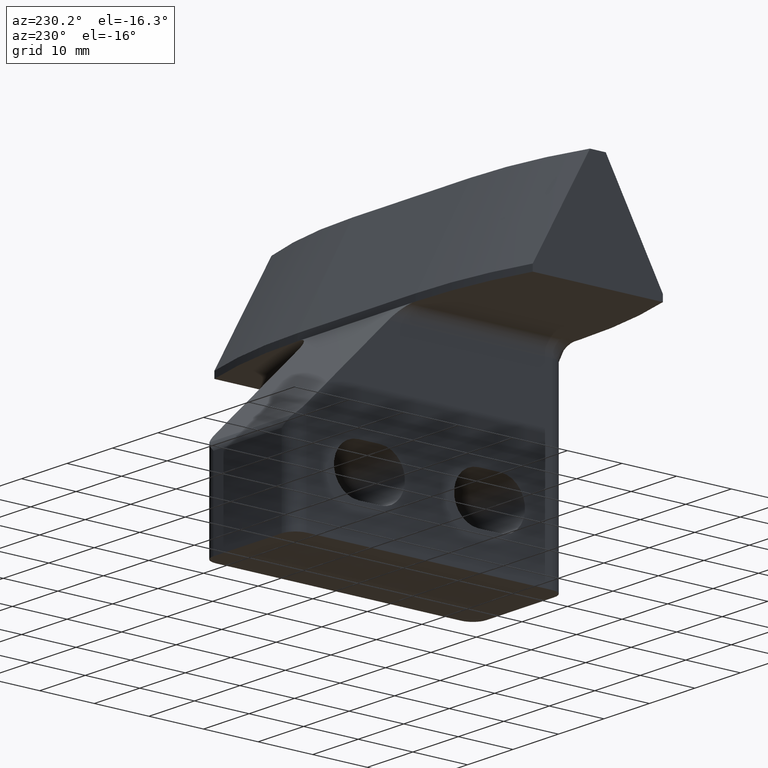
[diagram: clean part render]
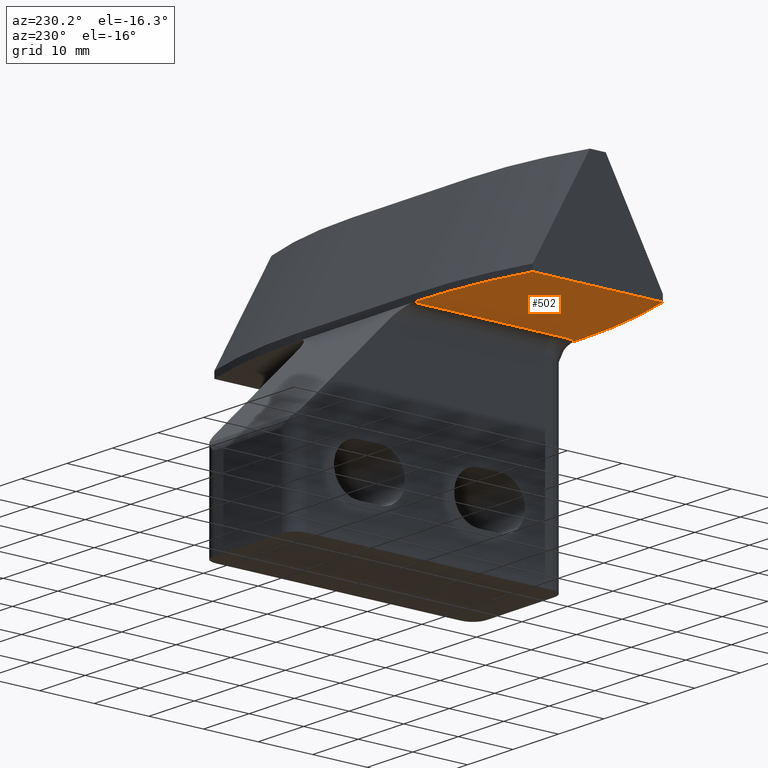
[diagram: same view with one face highlighted and labeled with its STEP entity id]
A machine part, auxiliary view. The second image highlights one B-rep face of the part: STEP entity #502.
In plain terms, the highlighted planar face has unit normal (-0, 0, -1).
Its self-contained STEP definition (entity closure, byte-faithful):
#11 = DIRECTION ( 'NONE',  ( 1.000000000000000000, -0.0000000000000000000, -2.449212699372949900E-016 ) ) ;
#56 = VECTOR ( 'NONE', #75, 1000.000000000000000 ) ;
#67 = CARTESIAN_POINT ( 'NONE',  ( 234.1349525314609800, -199.0043693264350100, 74.60903880632299900 ) ) ;
#75 = DIRECTION ( 'NONE',  ( -5.745622712387520600E-015, -1.000000000000000000, -1.501220156255855100E-042 ) ) ;
#88 = CIRCLE ( 'NONE', #915, 80.00000000000106600 ) ;
#112 = VERTEX_POINT ( 'NONE', #279 ) ;
#116 = EDGE_CURVE ( 'NONE', #159, #720, #88, .T. ) ;
#159 = VERTEX_POINT ( 'NONE', #709 ) ;
#163 = DIRECTION ( 'NONE',  ( -3.376836764008450400E-014, 1.407015318336848100E-014, -1.000000000000000000 ) ) ;
#171 = EDGE_CURVE ( 'NONE', #938, #849, #1152, .T. ) ;
#178 = CARTESIAN_POINT ( 'NONE',  ( 256.9188123768908000, -228.2221943840681900, 74.60903880632298500 ) ) ;
#185 = CARTESIAN_POINT ( 'NONE',  ( 256.1349525314614700, -199.0043693264334500, 74.60903880632299900 ) ) ;
#279 = CARTESIAN_POINT ( 'NONE',  ( 234.1349525314609800, -225.9199074185518400, 74.60903880632369600 ) ) ;
#280 = CARTESIAN_POINT ( 'NONE',  ( 256.6349525314614100, -226.5043693264349500, 74.60903880632305600 ) ) ;
#301 = ORIENTED_EDGE ( 'NONE', *, *, #1307, .T. ) ;
#304 = ORIENTED_EDGE ( 'NONE', *, *, #393, .T. ) ;
#371 = CARTESIAN_POINT ( 'NONE',  ( 256.6349525314620300, -199.0043693264343900, 74.60903880632308500 ) ) ;
#379 = CARTESIAN_POINT ( 'NONE',  ( 257.3048255125381700, -229.0043693264353200, 74.60903880632301400 ) ) ;
#393 = EDGE_CURVE ( 'NONE', #694, #790, #644, .T. ) ;
#419 = AXIS2_PLACEMENT_3D ( 'NONE', #1050, #1165, #877 ) ;
#497 = CARTESIAN_POINT ( 'NONE',  ( 256.6349525314610100, -226.9430276328663500, 74.60903880632301400 ) ) ;
#502 = ADVANCED_FACE ( 'NONE', ( #1193 ), #1282, .T. ) ;
#516 = EDGE_CURVE ( 'NONE', #790, #112, #1314, .T. ) ;
#527 = EDGE_CURVE ( 'NONE', #720, #938, #1375, .T. ) ;
#540 = ORIENTED_EDGE ( 'NONE', *, *, #516, .T. ) ;
#608 = CARTESIAN_POINT ( 'NONE',  ( 256.1349525314610100, -279.0043693264339600, 74.60903880632187700 ) ) ;
#617 = DIRECTION ( 'NONE',  ( 5.396188876338722400E-032, 1.000000000000000000, 2.203234075064309700E-016 ) ) ;
#622 = ORIENTED_EDGE ( 'NONE', *, *, #1366, .T. ) ;
#625 = DIRECTION ( 'NONE',  ( -2.449212699372949900E-016, 2.203234075064309700E-016, -1.000000000000000000 ) ) ;
#644 = LINE ( 'NONE', #994, #730 ) ;
#646 = CARTESIAN_POINT ( 'NONE',  ( 256.6349525314620300, -199.0043693264340400, 74.60903880632299900 ) ) ;
#680 = VECTOR ( 'NONE', #11, 1000.000000000000000 ) ;
#694 = VERTEX_POINT ( 'NONE', #379 ) ;
#709 = CARTESIAN_POINT ( 'NONE',  ( 234.1349525314609000, -202.0888312343152500, 74.60903880632317000 ) ) ;
#720 = VERTEX_POINT ( 'NONE', #185 ) ;
#730 = VECTOR ( 'NONE', #1218, 1000.000000000000000 ) ;
#767 = AXIS2_PLACEMENT_3D ( 'NONE', #1056, #625, #840 ) ;
#790 = VERTEX_POINT ( 'NONE', #1395 ) ;
#816 = DIRECTION ( 'NONE',  ( 1.000000000000000000, -3.469446951953568000E-015, -3.382710778154729000E-014 ) ) ;
#840 = DIRECTION ( 'NONE',  ( -1.000000000000000000, 0.0000000000000000000, 2.449212699372949900E-016 ) ) ;
#849 = VERTEX_POINT ( 'NONE', #966 ) ;
#877 = DIRECTION ( 'NONE',  ( 1.000000000000000000, -2.775557561562892900E-015, -3.382710778154775700E-014 ) ) ;
#915 = AXIS2_PLACEMENT_3D ( 'NONE', #608, #163, #816 ) ;
#933 = CARTESIAN_POINT ( 'NONE',  ( 256.6918344231396500, -227.3747347198269900, 74.60903880632301400 ) ) ;
#938 = VERTEX_POINT ( 'NONE', #371 ) ;
#966 = CARTESIAN_POINT ( 'NONE',  ( 256.6349525314614100, -226.5043693264349500, 74.60903880632305600 ) ) ;
#994 = CARTESIAN_POINT ( 'NONE',  ( 256.6349525314620300, -229.0043693264350100, 74.60903880632299900 ) ) ;
#1027 = CARTESIAN_POINT ( 'NONE',  ( 257.3048255125381700, -229.0043693264353200, 74.60903880632301400 ) ) ;
#1036 = CARTESIAN_POINT ( 'NONE',  ( 256.6349525314623200, -147.3576216804349900, 74.60903880632312700 ) ) ;
#1037 = LINE ( 'NONE', #67, #1378 ) ;
#1050 = CARTESIAN_POINT ( 'NONE',  ( 256.1349525314610100, -149.0043693264339900, 74.60903880632365300 ) ) ;
#1056 = CARTESIAN_POINT ( 'NONE',  ( 256.6349525314620300, -199.0043693264350100, 74.60903880632299900 ) ) ;
#1125 = ORIENTED_EDGE ( 'NONE', *, *, #116, .T. ) ;
#1152 = LINE ( 'NONE', #1036, #56 ) ;
#1165 = DIRECTION ( 'NONE',  ( -3.376836764008450400E-014, 1.547716850170540300E-014, -1.000000000000000000 ) ) ;
#1193 = FACE_OUTER_BOUND ( 'NONE', #1371, .T. ) ;
#1216 = B_SPLINE_CURVE_WITH_KNOTS ( 'NONE', 3,
 ( #280, #497, #933, #178, #1268, #1027 ),
 .UNSPECIFIED., .F., .F.,
 ( 4, 2, 4 ),
 ( 0.0000000000000000000, 0.5000000000000000000, 1.000000000000000000 ),
 .UNSPECIFIED. ) ;
#1218 = DIRECTION ( 'NONE',  ( -1.000000000000000000, 0.0000000000000000000, 2.449212699372949900E-016 ) ) ;
#1268 = CARTESIAN_POINT ( 'NONE',  ( 257.0853130810650100, -228.6241626422307100, 74.60903880632301400 ) ) ;
#1273 = ORIENTED_EDGE ( 'NONE', *, *, #171, .T. ) ;
#1282 = PLANE ( 'NONE',  #767 ) ;
#1307 = EDGE_CURVE ( 'NONE', #849, #694, #1216, .T. ) ;
#1314 = CIRCLE ( 'NONE', #419, 79.99999999999995700 ) ;
#1341 = ORIENTED_EDGE ( 'NONE', *, *, #527, .T. ) ;
#1366 = EDGE_CURVE ( 'NONE', #112, #159, #1037, .T. ) ;
#1371 = EDGE_LOOP ( 'NONE', ( #1125, #1341, #1273, #301, #304, #540, #622 ) ) ;
#1375 = LINE ( 'NONE', #646, #680 ) ;
#1378 = VECTOR ( 'NONE', #617, 1000.000000000000000 ) ;
#1395 = CARTESIAN_POINT ( 'NONE',  ( 256.1349525314615200, -229.0043693264344700, 74.60903880632241700 ) ) ;